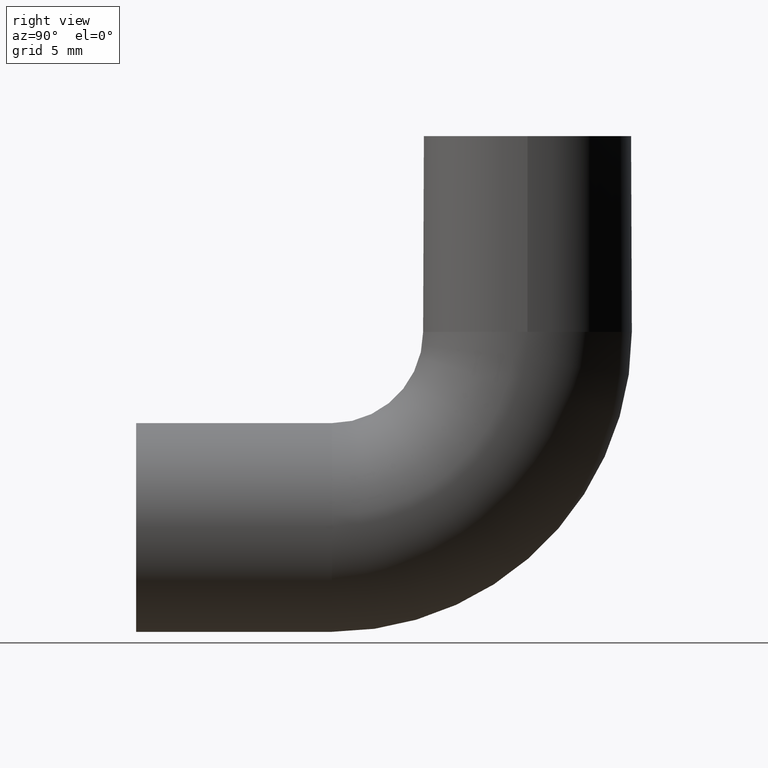
[diagram: clean part render]
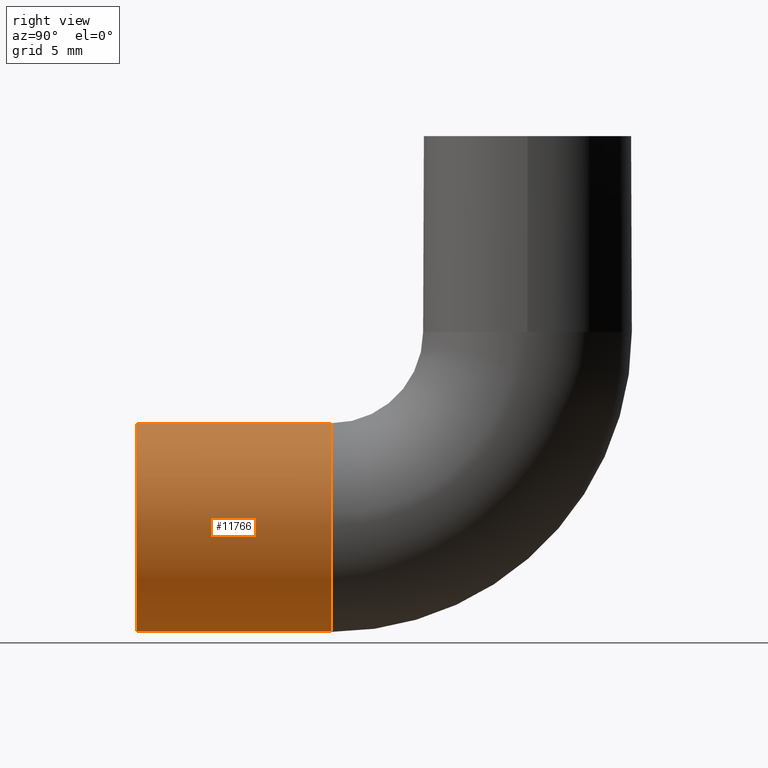
[diagram: same view with one face highlighted and labeled with its STEP entity id]
A machine part, right view. The second image highlights one B-rep face of the part: STEP entity #11766.
In plain terms, the highlighted cylindrical surface (partial cylindrical patch) has radius 8 mm, axis along (-0, -1, -0).
Its self-contained STEP definition (entity closure, byte-faithful):
#255 = DIRECTION ( 'NONE',  ( -0.000000000000000000, -1.000000000000000000, -1.156482317317872711E-16 ) ) ;
#295 = CARTESIAN_POINT ( 'NONE',  ( 0.000000000000000000, 14.99999999999999822, -7.999999999999998224 ) ) ;
#550 = EDGE_CURVE ( 'NONE', #7072, #802, #591, .T. ) ;
#563 = CARTESIAN_POINT ( 'NONE',  ( 0.000000000000000000, 14.99999999999999645, -7.999999999999998224 ) ) ;
#591 = LINE ( 'NONE', #295, #8377 ) ;
#802 = VERTEX_POINT ( 'NONE', #3618 ) ;
#840 = CARTESIAN_POINT ( 'NONE',  ( 0.000000000000000000, 0.000000000000000000, 0.000000000000000000 ) ) ;
#1555 = DIRECTION ( 'NONE',  ( 0.000000000000000000, 0.000000000000000000, 1.000000000000000000 ) ) ;
#1575 = EDGE_CURVE ( 'NONE', #9186, #7072, #2949, .T. ) ;
#1638 = DIRECTION ( 'NONE',  ( 0.000000000000000000, 1.000000000000000000, 0.000000000000000000 ) ) ;
#1673 = DIRECTION ( 'NONE',  ( 0.000000000000000000, 2.168404344971008868E-16, -1.000000000000000000 ) ) ;
#1713 = CARTESIAN_POINT ( 'NONE',  ( 9.797174393178827630E-16, 14.99999999999999645, 8.000000000000001776 ) ) ;
#1790 = CARTESIAN_POINT ( 'NONE',  ( 9.797174393178825657E-16, 14.99999999999999467, 8.000000000000001776 ) ) ;
#2949 = CIRCLE ( 'NONE', #5977, 8.000000000000000000 ) ;
#3150 = EDGE_LOOP ( 'NONE', ( #3922, #5639, #8104, #5815 ) ) ;
#3386 = LINE ( 'NONE', #1790, #11756 ) ;
#3618 = CARTESIAN_POINT ( 'NONE',  ( 0.000000000000000000, 0.000000000000000000, -8.000000000000000000 ) ) ;
#3764 = EDGE_CURVE ( 'NONE', #9186, #4926, #3386, .T. ) ;
#3777 = CYLINDRICAL_SURFACE ( 'NONE', #11371, 8.000000000000000000 ) ;
#3922 = ORIENTED_EDGE ( 'NONE', *, *, #1575, .F. ) ;
#3992 = EDGE_CURVE ( 'NONE', #4926, #802, #5573, .T. ) ;
#4596 = CARTESIAN_POINT ( 'NONE',  ( 0.000000000000000000, 14.99999999999999645, 1.734723475976808672E-15 ) ) ;
#4926 = VERTEX_POINT ( 'NONE', #7789 ) ;
#5017 = FACE_OUTER_BOUND ( 'NONE', #3150, .T. ) ;
#5573 = CIRCLE ( 'NONE', #6494, 8.000000000000000000 ) ;
#5639 = ORIENTED_EDGE ( 'NONE', *, *, #3764, .T. ) ;
#5763 = DIRECTION ( 'NONE',  ( -0.000000000000000000, -1.000000000000000000, -1.156482317317872711E-16 ) ) ;
#5815 = ORIENTED_EDGE ( 'NONE', *, *, #550, .F. ) ;
#5881 = DIRECTION ( 'NONE',  ( 0.000000000000000000, 1.000000000000000000, 0.000000000000000000 ) ) ;
#5977 = AXIS2_PLACEMENT_3D ( 'NONE', #4596, #1638, #1555 ) ;
#6494 = AXIS2_PLACEMENT_3D ( 'NONE', #840, #5881, #8974 ) ;
#7072 = VERTEX_POINT ( 'NONE', #563 ) ;
#7633 = DIRECTION ( 'NONE',  ( -0.000000000000000000, -1.000000000000000000, -1.156482317317872711E-16 ) ) ;
#7789 = CARTESIAN_POINT ( 'NONE',  ( 9.797174393178825657E-16, 0.000000000000000000, 8.000000000000000000 ) ) ;
#8104 = ORIENTED_EDGE ( 'NONE', *, *, #3992, .T. ) ;
#8377 = VECTOR ( 'NONE', #255, 1000.000000000000000 ) ;
#8974 = DIRECTION ( 'NONE',  ( 0.000000000000000000, 0.000000000000000000, 1.000000000000000000 ) ) ;
#9186 = VERTEX_POINT ( 'NONE', #1713 ) ;
#11371 = AXIS2_PLACEMENT_3D ( 'NONE', #12566, #7633, #1673 ) ;
#11756 = VECTOR ( 'NONE', #5763, 1000.000000000000000 ) ;
#11766 = ADVANCED_FACE ( 'NONE', ( #5017 ), #3777, .T. ) ;
#12566 = CARTESIAN_POINT ( 'NONE',  ( 0.000000000000000000, 14.99999999999999645, 1.734723475976808672E-15 ) ) ;